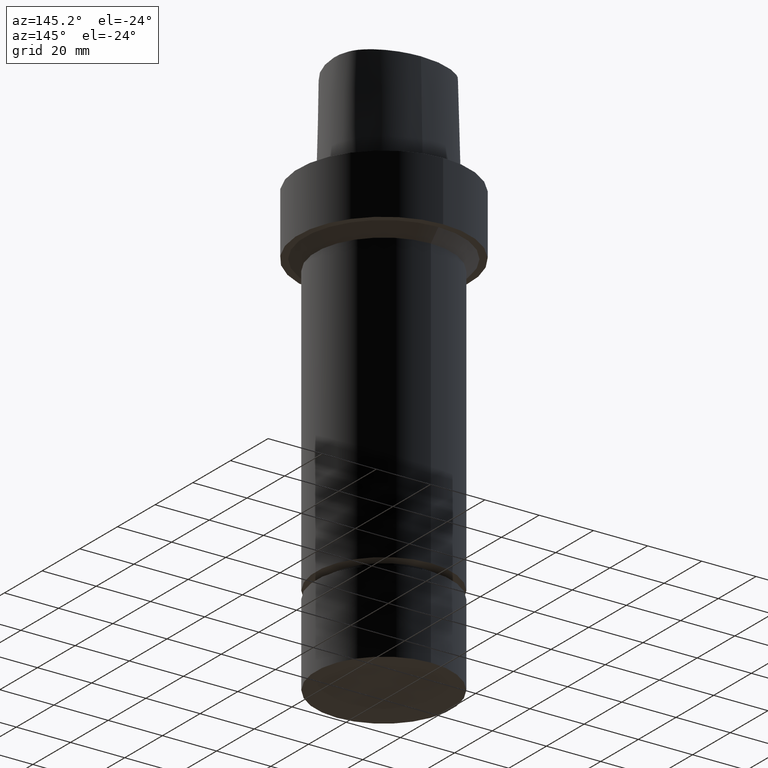
[diagram: clean part render]
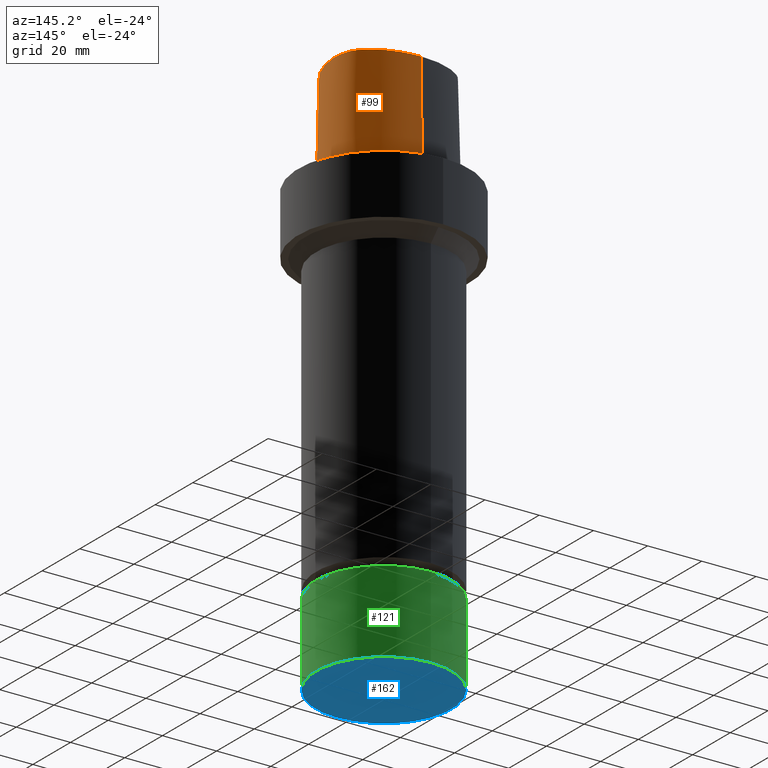
[diagram: same view with three faces highlighted in distinct colors, each labeled with its STEP entity id]
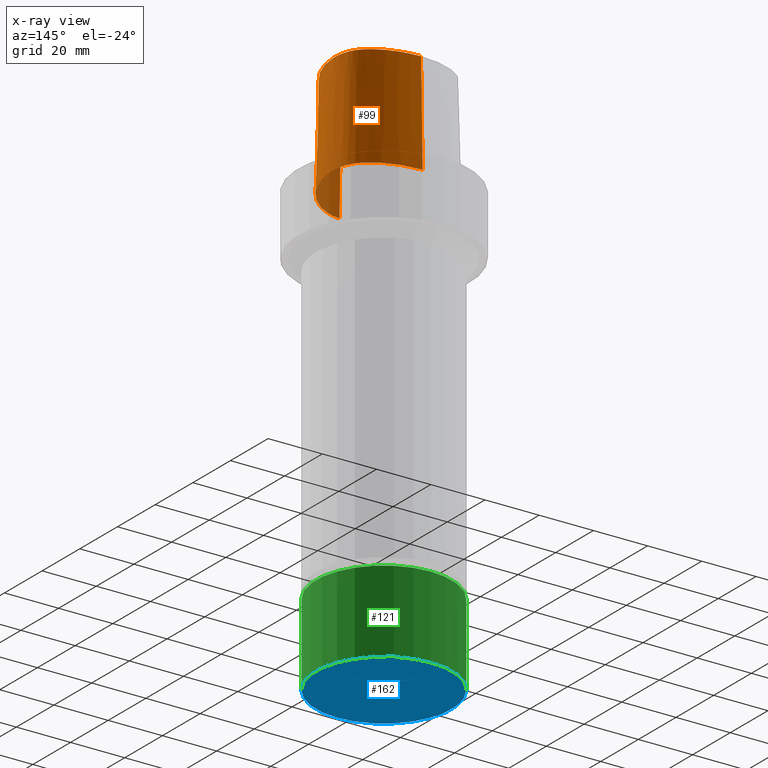
[diagram: x-ray of the same camera — body ghosted, the three highlighted faces saturated]
A machine part, auxiliary view with three faces highlighted in distinct colors.
The next image is the same camera in x-ray (body ghosted, the three faces saturated) — at least one of them is partly hidden behind the body in this view.
Their STEP definitions:

[orange] entity #99 — the highlighted face is a freeform B-spline surface patch.
#73=EDGE_CURVE('Unnamed[1]',#192,#193,#194,.T.);
#90=EDGE_CURVE('Unnamed[1]',#218,#192,#219,.T.);
#99=ADVANCED_FACE('Unnamed[1]',(#231),#232,.T.);
#136=EDGE_CURVE('Unnamed[1]',#286,#193,#287,.T.);
#171=EDGE_CURVE('Unnamed[1]',#286,#218,#336,.T.);
#192=VERTEX_POINT('',#350);
#193=VERTEX_POINT('',#351);
#194=B_SPLINE_CURVE_WITH_KNOTS('',3,(#352,#353,#354,#355,#356,#357,#358,#359,#360,#361,#362,#363,#364,#365,#366,#367,#368),.UNSPECIFIED.,.F.,.F.,(4,1,1,1,1,1,1,1,1,1,1,1,1,1,4),(-13.2302678617486,-12.816821991069,-12.4033761203893,-11.9899302497097,-11.57648437903,-11.1630385083504,-10.9563155730106,-10.7495926376707,-10.3361467669911,-9.92270089631145,-9.09580915495216,-8.26891741359287,-7.44202567223358,-7.02857980155394,-6.6151339308743),.UNSPECIFIED.);
#218=VERTEX_POINT('',#397);
#219=LINE('',#398,#399);
#231=FACE_OUTER_BOUND('',#432,.T.);
#232=B_SPLINE_SURFACE_WITH_KNOTS('',3,3,((#433,#434,#435,#436),(#437,#438,#439,#440),(#441,#442,#443,#444),(#445,#446,#447,#448),(#449,#450,#451,#452),(#453,#454,#455,#456),(#457,#458,#459,#460),(#461,#462,#463,#464),(#465,#466,#467,#468),(#469,#470,#471,#472),(#473,#474,#475,#476),(#477,#478,#479,#480),(#481,#482,#483,#484),(#485,#486,#487,#488),(#489,#490,#491,#492),(#493,#494,#495,#496),(#497,#498,#499,#500)),.UNSPECIFIED.,.F.,.F.,.F.,(4,1,1,1,1,1,1,1,1,1,1,1,1,1,4),(4,4),(-13.2302678617486,-12.816821991069,-12.4033761203893,-11.9899302497097,-11.57648437903,-11.1630385083504,-10.9563155730106,-10.7495926376707,-10.3361467669911,-9.92270089631145,-9.09580915495216,-8.26891741359287,-7.44202567223358,-7.02857980155394,-6.6151339308743),(-3.8,0.0),.UNSPECIFIED.);
#286=VERTEX_POINT('',#569);
#287=LINE('',#570,#571);
#336=B_SPLINE_CURVE_WITH_KNOTS('',3,(#720,#721,#722,#723,#724,#725,#726,#727,#728,#729,#730,#731,#732,#733,#734,#735),.UNSPECIFIED.,.F.,.F.,(4,1,1,1,1,1,1,1,1,1,1,1,1,4),(6.61513393087476,6.99917207152274,7.48193246986995,7.96289324787093,8.45540287038584,9.10291653679981,9.67129810936083,10.1618749681153,10.6358867802489,11.1080734988593,11.6043706019633,12.09451993853,12.6985979284494,13.2302678617486),.UNSPECIFIED.);
#350=CARTESIAN_POINT('',(0.044682985379347,20.6765087343109,1.61778115328528E-031));
#351=CARTESIAN_POINT('',(0.04359356758149,-23.4691235068931,7.78075697532443E-032));
#352=CARTESIAN_POINT('',(0.044682985379347,20.6765087343109,1.61778115328528E-031));
#353=CARTESIAN_POINT('',(1.42379272427753,20.6097915814392,8.62816615085482E-032));
#354=CARTESIAN_POINT('',(4.2230955003445,20.4837538303966,1.4791141972894E-031));
#355=CARTESIAN_POINT('',(8.47220762821777,19.6890432607088,9.86076131526265E-032));
#356=CARTESIAN_POINT('',(12.5141247708253,18.2434968480404,0.0));
#357=CARTESIAN_POINT('',(16.3038624872874,16.1734192182143,1.97215226305253E-031));
#358=CARTESIAN_POINT('',(19.1446913988473,13.7036723639434,-1.97215226305253E-031));
#359=CARTESIAN_POINT('',(20.7319894342149,11.1014620996188,0.0));
#360=CARTESIAN_POINT('',(21.7831756505763,8.28099229708081,-1.97215226305253E-031));
#361=CARTESIAN_POINT('',(22.2258240701438,4.60865440596506,0.0));
#362=CARTESIAN_POINT('',(21.7436130080666,-1.11326526354485,0.0));
#363=CARTESIAN_POINT('',(19.5519487660502,-7.95432366164584,0.0));
#364=CARTESIAN_POINT('',(14.9574167123838,-15.2089785567293,0.0));
#365=CARTESIAN_POINT('',(9.66840283021945,-20.0827414369705,-9.86076131526265E-032));
#366=CARTESIAN_POINT('',(4.51628650521788,-22.7946374572188,-9.86076131526265E-032));
#367=CARTESIAN_POINT('',(1.55867251738073,-23.4612972770043,-1.23259516440783E-032));
#368=CARTESIAN_POINT('',(0.04359356758149,-23.4691235068931,7.78075697532443E-032));
#397=CARTESIAN_POINT('',(-0.001218547003662,19.7276821925089,38.0));
#398=CARTESIAN_POINT('',(-0.001218547003662,19.7276821925089,38.0));
#399=VECTOR('',#763,38.0118715503078);
#432=EDGE_LOOP('',(#771,#772,#773,#774));
#433=CARTESIAN_POINT('',(-0.001218367817519,19.7276822012873,38.0));
#434=CARTESIAN_POINT('',(0.014082083248157,20.0439577123075,25.3333333333066));
#435=CARTESIAN_POINT('',(0.029382534313671,20.3602332232908,12.6666666666934));
#436=CARTESIAN_POINT('',(0.044682985379347,20.6765087343109,1.61778115328528E-031));
#437=CARTESIAN_POINT('',(1.37788651195108,19.6609652834875,38.0));
#438=CARTESIAN_POINT('',(1.3931885827258,19.9772407169847,25.3333333333066));
#439=CARTESIAN_POINT('',(1.40849065356095,20.2935162254648,12.6666666666934));
#440=CARTESIAN_POINT('',(1.42379272427753,20.6097915814392,8.62816615085482E-032));
#441=CARTESIAN_POINT('',(4.135446440878,19.5347778787784,38.0));
#442=CARTESIAN_POINT('',(4.16466278851883,19.8511031866125,25.3333333333066));
#443=CARTESIAN_POINT('',(4.1938791526746,20.1674284644204,12.6666666666934));
#444=CARTESIAN_POINT('',(4.2230955003445,20.4837538303966,1.4791141972894E-031));
#445=CARTESIAN_POINT('',(8.213607363795,18.7706026638736,38.0));
#446=CARTESIAN_POINT('',(8.29980745008421,19.0767495109635,25.3333333333066));
#447=CARTESIAN_POINT('',(8.38600751285747,19.3828964329996,12.6666666666934));
#448=CARTESIAN_POINT('',(8.47220762821777,19.6890432607088,9.86076131526265E-032));
#449=CARTESIAN_POINT('',(12.1316338645671,17.3698624840857,38.0));
#450=CARTESIAN_POINT('',(12.2591308270381,17.6610739397708,25.3333333333066));
#451=CARTESIAN_POINT('',(12.3866278083543,17.9522853923553,12.6666666666934));
#452=CARTESIAN_POINT('',(12.5141247708253,18.2434968480404,0.0));
#453=CARTESIAN_POINT('',(15.7706546153679,15.3789501349612,38.0));
#454=CARTESIAN_POINT('',(15.9483905900895,15.6437731794811,25.3333333333066));
#455=CARTESIAN_POINT('',(16.1261265513272,15.9085961736944,12.6666666666934));
#456=CARTESIAN_POINT('',(16.3038624872874,16.1734192182143,1.97215226305253E-031));
#457=CARTESIAN_POINT('',(18.4265894256284,13.0570022172893,38.0));
#458=CARTESIAN_POINT('',(18.6659567517146,13.2725589420689,25.3333333333066));
#459=CARTESIAN_POINT('',(18.9053240921419,13.4881156488541,12.6666666666934));
#460=CARTESIAN_POINT('',(19.1446913988473,13.7036723639434,-1.97215226305253E-031));
#461=CARTESIAN_POINT('',(19.8679958653038,10.6923771981998,38.0));
#462=CARTESIAN_POINT('',(20.1559937048299,10.8287388264873,25.3333333333066));
#463=CARTESIAN_POINT('',(20.4439915656177,10.965100461641,12.6666666666934));
#464=CARTESIAN_POINT('',(20.7319894342149,11.1014620996188,0.0));
#465=CARTESIAN_POINT('',(20.8470867582337,8.07149548576131,38.0));
#466=CARTESIAN_POINT('',(21.1591164072431,8.14132775555392,25.3333333333066));
#467=CARTESIAN_POINT('',(21.4711459821861,8.21116003697855,12.6666666666934));
#468=CARTESIAN_POINT('',(21.7831756505763,8.28099229708081,-1.97215226305253E-031));
#469=CARTESIAN_POINT('',(21.2693244256982,4.61157245650171,38.0));
#470=CARTESIAN_POINT('',(21.5881576801997,4.6105997689982,25.3333333333066));
#471=CARTESIAN_POINT('',(21.9069908544037,4.60962709346857,12.6666666666934));
#472=CARTESIAN_POINT('',(22.2258240701438,4.60865440596506,0.0));
#473=CARTESIAN_POINT('',(20.8071610855575,-0.912828649855193,38.0));
#474=CARTESIAN_POINT('',(21.119311671178,-0.979640884839481,25.3333333333066));
#475=CARTESIAN_POINT('',(21.4314624224461,-1.04645306732201,12.6666666666934));
#476=CARTESIAN_POINT('',(21.7436130080666,-1.11326526354485,0.0));
#477=CARTESIAN_POINT('',(18.6841935581315,-7.54428794252837,38.0));
#478=CARTESIAN_POINT('',(18.9734452551861,-7.6809665891091,25.3333333333066));
#479=CARTESIAN_POINT('',(19.2626970689956,-7.81764505382656,12.6666666666934));
#480=CARTESIAN_POINT('',(19.5519487660502,-7.95432366164584,0.0));
#481=CARTESIAN_POINT('',(14.2175552814,-14.5971504342323,38.0));
#482=CARTESIAN_POINT('',(14.4641757465198,-14.8010930946929,25.3333333333066));
#483=CARTESIAN_POINT('',(14.710796247264,-15.0050359737917,12.6666666666934));
#484=CARTESIAN_POINT('',(14.9574167123838,-15.2089785567293,0.0));
#485=CARTESIAN_POINT('',(9.0844808732933,-19.3179298129689,38.0));
#486=CARTESIAN_POINT('',(9.27912152349017,-19.572866915557,25.3333333333066));
#487=CARTESIAN_POINT('',(9.47376218971294,-19.827804295621,12.6666666666934));
#488=CARTESIAN_POINT('',(9.66840283021945,-20.0827414369705,-9.86076131526265E-032));
#489=CARTESIAN_POINT('',(4.17112919194182,-21.8987568152736,38.0));
#490=CARTESIAN_POINT('',(4.28618163483998,-22.1973837173649,25.3333333333066));
#491=CARTESIAN_POINT('',(4.40123406239433,-22.4960105163661,12.6666666666934));
#492=CARTESIAN_POINT('',(4.51628650521788,-22.7946374572188,-9.86076131526265E-032));
#493=CARTESIAN_POINT('',(1.41533654381097,-22.5120888467812,38.0));
#494=CARTESIAN_POINT('',(1.46311520162011,-22.8284916374445,25.3333333333066));
#495=CARTESIAN_POINT('',(1.51089385942236,-23.144894486341,12.6666666666934));
#496=CARTESIAN_POINT('',(1.55867251738073,-23.4612972770043,-1.23259516440783E-032));
#497=CARTESIAN_POINT('',(0.038736923393866,-22.5191997536361,38.0));
#498=CARTESIAN_POINT('',(0.04035580478973,-22.8358410047159,25.3333333333066));
#499=CARTESIAN_POINT('',(0.041974686185626,-23.1524822558133,12.6666666666934));
#500=CARTESIAN_POINT('',(0.04359356758149,-23.4691235068931,7.78075697532443E-032));
#569=CARTESIAN_POINT('',(0.038736923393866,-22.5191997536361,38.0));
#570=CARTESIAN_POINT('',(0.038736923393866,-22.5191997536361,38.0));
#571=VECTOR('',#832,38.0118715498723);
#720=CARTESIAN_POINT('',(0.038736923394311,-22.519199753636,38.0));
#721=CARTESIAN_POINT('',(1.31742058183662,-22.512662269405,38.0));
#722=CARTESIAN_POINT('',(4.2093773447498,-21.9116226439989,38.0));
#723=CARTESIAN_POINT('',(8.20895504542113,-19.7798683845067,38.0));
#724=CARTESIAN_POINT('',(11.9784633234593,-16.681663904162,38.0));
#725=CARTESIAN_POINT('',(15.5308821579362,-12.5807487594113,38.0));
#726=CARTESIAN_POINT('',(18.4566248438667,-7.64932246015528,38.0));
#727=CARTESIAN_POINT('',(20.4036090752029,-2.27012499825289,38.0));
#728=CARTESIAN_POINT('',(21.2357187429189,2.79891401173156,38.0));
#729=CARTESIAN_POINT('',(21.0811206267748,7.62543090736657,38.0));
#730=CARTESIAN_POINT('',(19.3383577336563,12.2772250726194,38.0));
#731=CARTESIAN_POINT('',(15.5796322014404,15.5799672120682,38.0));
#732=CARTESIAN_POINT('',(10.8392956074438,17.9834601687347,38.0));
#733=CARTESIAN_POINT('',(5.56068045850571,19.4586143858472,38.0));
#734=CARTESIAN_POINT('',(1.77223893711014,19.6418877095654,38.0));
#735=CARTESIAN_POINT('',(-0.001218367817519,19.7276822012873,38.0));
#763=DIRECTION('',(0.001207557810519,0.024961321374199,-0.999687688350411));
#771=ORIENTED_EDGE('',*,*,#73,.F.);
#772=ORIENTED_EDGE('',*,*,#90,.F.);
#773=ORIENTED_EDGE('',*,*,#171,.F.);
#774=ORIENTED_EDGE('',*,*,#136,.T.);
#832=DIRECTION('',(0.000127766510556,-0.024990186342461,-0.999687688361864));

[blue] entity #162 — the highlighted planar face has unit normal (0, 0, -1).
#96=EDGE_CURVE('Unnamed[1]',#227,#227,#228,.T.);
#162=ADVANCED_FACE('Unnamed[1]',(#324),#325,.T.);
#227=VERTEX_POINT('',#427);
#228=CIRCLE('',#428,25.0);
#324=FACE_OUTER_BOUND('',#633,.T.);
#325=PLANE('',#634);
#427=CARTESIAN_POINT('',(1.01033360929657E-014,25.0,-165.0));
#428=AXIS2_PLACEMENT_3D('',#767,#768,#769);
#633=EDGE_LOOP('',(#872));
#634=AXIS2_PLACEMENT_3D('',#873,#874,#875);
#767=CARTESIAN_POINT('',(1.01033360929657E-014,2.02066721859313E-014,-165.0));
#768=DIRECTION('',(6.12323399573677E-017,1.22464679914735E-016,-1.0));
#769=DIRECTION('',(-1.23259516440783E-032,1.0,1.22464679914735E-016));
#872=ORIENTED_EDGE('',*,*,#96,.T.);
#873=CARTESIAN_POINT('',(1.01033360929657E-014,12.5,-165.0));
#874=DIRECTION('',(6.12323399573677E-017,1.22464679914735E-016,-1.0));
#875=DIRECTION('',(-1.23259516440783E-032,1.0,1.22464679914735E-016));

[green] entity #121 — the highlighted cylindrical surface (bore or boss wall) has radius 25 mm, axis along (0, 0, -1).
#96=EDGE_CURVE('Unnamed[1]',#227,#227,#228,.T.);
#121=ADVANCED_FACE('Unnamed[1]',(#264,#265),#266,.T.);
#156=EDGE_CURVE('Unnamed[1]',#315,#315,#316,.T.);
#227=VERTEX_POINT('',#427);
#228=CIRCLE('',#428,25.0);
#264=FACE_BOUND('',#541,.T.);
#265=FACE_BOUND('',#542,.T.);
#266=CYLINDRICAL_SURFACE('',#543,25.0);
#315=VERTEX_POINT('',#622);
#316=CIRCLE('',#623,25.0);
#427=CARTESIAN_POINT('',(1.01033360929657E-014,25.0,-165.0));
#428=AXIS2_PLACEMENT_3D('',#767,#768,#769);
#541=EDGE_LOOP('',(#808));
#542=EDGE_LOOP('',(#809));
#543=AXIS2_PLACEMENT_3D('',#810,#811,#812);
#622=CARTESIAN_POINT('',(8.25411942625316E-015,25.0,-134.8));
#623=AXIS2_PLACEMENT_3D('',#862,#863,#864);
#767=CARTESIAN_POINT('',(1.01033360929657E-014,2.02066721859313E-014,-165.0));
#768=DIRECTION('',(6.12323399573677E-017,1.22464679914735E-016,-1.0));
#769=DIRECTION('',(-1.23259516440783E-032,1.0,1.22464679914735E-016));
#808=ORIENTED_EDGE('',*,*,#96,.F.);
#809=ORIENTED_EDGE('',*,*,#156,.T.);
#810=CARTESIAN_POINT('',(9.17872775960941E-015,1.83574555192188E-014,-149.9));
#811=DIRECTION('',(6.12323399573677E-017,1.22464679914735E-016,-1.0));
#812=DIRECTION('',(-1.23259516440783E-032,1.0,1.22464679914735E-016));
#862=CARTESIAN_POINT('',(8.25411942625316E-015,1.65082388525063E-014,-134.8));
#863=DIRECTION('',(6.12323399573677E-017,1.22464679914735E-016,-1.0));
#864=DIRECTION('',(-1.23259516440783E-032,1.0,1.22464679914735E-016));